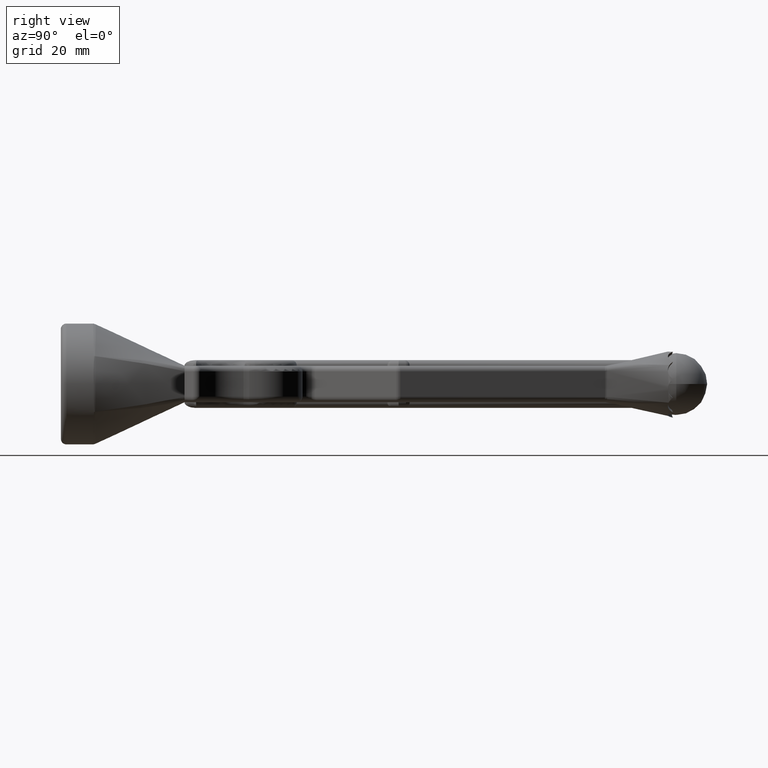
[diagram: clean part render]
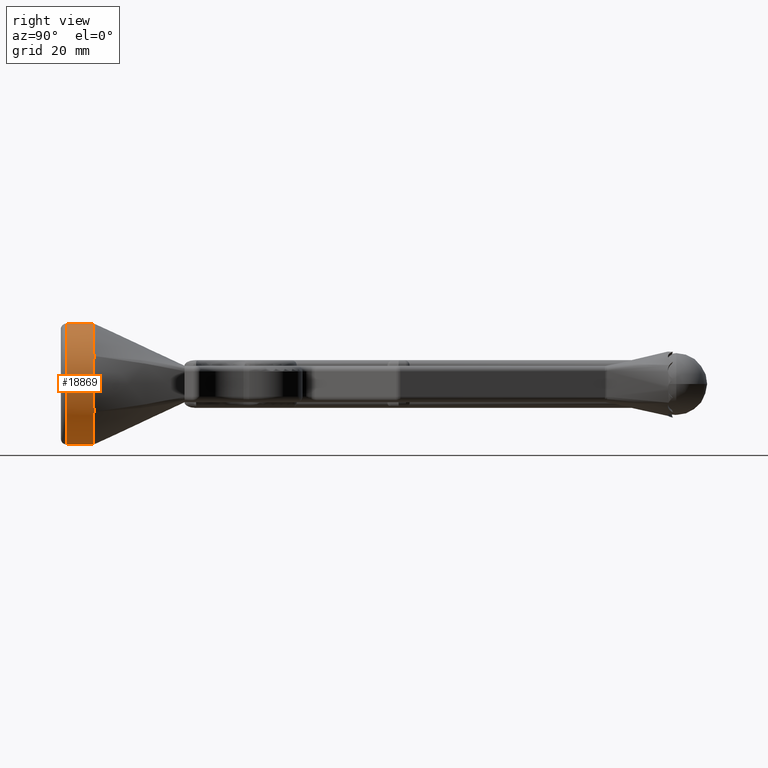
[diagram: same view with one face highlighted and labeled with its STEP entity id]
A machine part, right view. The second image highlights one B-rep face of the part: STEP entity #18869.
In plain terms, the highlighted cylindrical surface (partial cylindrical patch) has radius 10.75 mm, axis along (-0, -1, -0).
Its self-contained STEP definition (entity closure, byte-faithful):
#3 = CARTESIAN_POINT ( 'NONE',  ( 4.725174304590051800, 5.795162622435207700, 9.668112847951073600 ) ) ;
#74 = CARTESIAN_POINT ( 'NONE',  ( 1.956417839838611200, 5.778615271767035800, 10.58190273925002800 ) ) ;
#188 = CARTESIAN_POINT ( 'NONE',  ( 10.34239481519529700, 5.870035083264898600, -2.962874020644298900 ) ) ;
#486 = CARTESIAN_POINT ( 'NONE',  ( 9.537855356464522300, 5.885695716629819600, -4.959013327812917800 ) ) ;
#933 = FACE_OUTER_BOUND ( 'NONE', #17246, .T. ) ;
#1604 = CARTESIAN_POINT ( 'NONE',  ( 3.831619432770290600, 5.788960261848076000, 10.05576306263685800 ) ) ;
#1662 = ORIENTED_EDGE ( 'NONE', *, *, #10467, .T. ) ;
#1698 = EDGE_CURVE ( 'NONE', #9133, #2454, #12166, .T. ) ;
#1926 = CARTESIAN_POINT ( 'NONE',  ( 9.537855356464913100, 5.885695716629804500, 4.959013327812180600 ) ) ;
#1953 = DIRECTION ( 'NONE',  ( 0.0000000000000000000, 0.0000000000000000000, -1.000000000000000000 ) ) ;
#2454 = VERTEX_POINT ( 'NONE', #11570 ) ;
#3033 = CARTESIAN_POINT ( 'NONE',  ( 1.944594644622609400, 5.778578755150919100, -10.58384183915621100 ) ) ;
#3097 = CARTESIAN_POINT ( 'NONE',  ( 2.421019379256362100, 5.781199463207594000, -10.48523401817364600 ) ) ;
#3280 = CARTESIAN_POINT ( 'NONE',  ( 7.658495101500184700E-016, 5.777253727057037700, 10.75000000000000000 ) ) ;
#3301 = CARTESIAN_POINT ( 'NONE',  ( 7.513424690924352100, 5.832113446495268000, -7.703730188725741900 ) ) ;
#3398 = VERTEX_POINT ( 'NONE', #19685 ) ;
#3470 = CARTESIAN_POINT ( 'NONE',  ( 10.75049167244283400, 5.862065998264337300, 0.4197607774801860300 ) ) ;
#3853 = DIRECTION ( 'NONE',  ( 0.0000000000000000000, 0.0000000000000000000, 1.000000000000000000 ) ) ;
#4635 = CARTESIAN_POINT ( 'NONE',  ( 8.486248395338700200, 5.853295216865734400, -6.617050957597189000 ) ) ;
#4916 = CARTESIAN_POINT ( 'NONE',  ( 9.913312464579565400, 5.877333413304520500, -4.180326521974966300 ) ) ;
#5061 = CARTESIAN_POINT ( 'NONE',  ( 10.74899517169546400, 5.862020587486056500, -0.8767462786699983200 ) ) ;
#5125 = CARTESIAN_POINT ( 'NONE',  ( 10.72500334991806900, 5.861547834034491100, 0.8490222306473020900 ) ) ;
#6312 = CARTESIAN_POINT ( 'NONE',  ( 5.164410477957959600, 5.799669368201714200, 9.440903984621385800 ) ) ;
#6374 = CARTESIAN_POINT ( 'NONE',  ( 9.310684971031943000, 5.877060285134781700, 5.395938822832991200 ) ) ;
#6396 = CARTESIAN_POINT ( 'NONE',  ( 8.178332561731796300, 5.846304041732499200, -6.993846289174045200 ) ) ;
#6463 = CARTESIAN_POINT ( 'NONE',  ( 6.391429602897166400, 5.814697623438361200, -8.657643219176522500 ) ) ;
#6512 = CARTESIAN_POINT ( 'NONE',  ( 3.374087929672922500, 5.786962797386550500, 10.21834391823094100 ) ) ;
#6576 = CARTESIAN_POINT ( 'NONE',  ( 6.418576394773854300, 5.815247403890522200, 8.678801276165952300 ) ) ;
#6625 = CARTESIAN_POINT ( 'NONE',  ( 9.737444678016906600, 5.881761674096837900, 4.575096308568330300 ) ) ;
#7594 = CARTESIAN_POINT ( 'NONE',  ( 5.666999330898592400E-015, 5.777253727057037700, -10.75000000000000000 ) ) ;
#7750 = B_SPLINE_CURVE_WITH_KNOTS ( 'NONE', 3,
 ( #9697, #6374, #16049, #17636, #9559, #11149, #6576, #6312, #3, #1604, #6512, #19083, #74, #12685, #12755, #3280 ),
 .UNSPECIFIED., .F., .F.,
 ( 4, 2, 2, 2, 2, 2, 2, 4 ),
 ( 4.507345650460055400E-007, 0.001466143493673842500, 0.002931836252782638700, 0.005863221771000231600, 0.007328914530109025900, 0.008794607289217821000, 0.01026030004832661400, 0.01172599280743540800 ),
 .UNSPECIFIED. ) ;
#8118 = CARTESIAN_POINT ( 'NONE',  ( 1.316495309083404600E-015, 6.000000000000000000, 10.75000000000000000 ) ) ;
#8148 = DIRECTION ( 'NONE',  ( -0.0000000000000000000, -1.000000000000000000, -0.0000000000000000000 ) ) ;
#8617 = ORIENTED_EDGE ( 'NONE', *, *, #13134, .T. ) ;
#9133 = VERTEX_POINT ( 'NONE', #17379 ) ;
#9559 = CARTESIAN_POINT ( 'NONE',  ( 8.179886486364502200, 5.846334373851606300, 6.992351852599513000 ) ) ;
#9697 = CARTESIAN_POINT ( 'NONE',  ( 9.537855356464913100, 5.885695716629804500, 4.959013327812180600 ) ) ;
#9812 = ORIENTED_EDGE ( 'NONE', *, *, #18852, .T. ) ;
#10316 = DIRECTION ( 'NONE',  ( 0.0000000000000000000, 1.000000000000000000, 0.0000000000000000000 ) ) ;
#10467 = EDGE_CURVE ( 'NONE', #14057, #2454, #16684, .T. ) ;
#11149 = CARTESIAN_POINT ( 'NONE',  ( 7.172796657764938500, 5.824849381168526500, 8.067068708508554000 ) ) ;
#11357 = DIRECTION ( 'NONE',  ( -0.0000000000000000000, -1.000000000000000000, -0.0000000000000000000 ) ) ;
#11431 = DIRECTION ( 'NONE',  ( -0.0000000000000000000, -1.000000000000000000, -0.0000000000000000000 ) ) ;
#11570 = CARTESIAN_POINT ( 'NONE',  ( 0.0000000000000000000, 1.000000000000000000, -10.75000000000000000 ) ) ;
#11650 = CARTESIAN_POINT ( 'NONE',  ( 1.316495309083404600E-015, 1.000000000000000000, 10.75000000000000000 ) ) ;
#11757 = VERTEX_POINT ( 'NONE', #20526 ) ;
#11813 = CYLINDRICAL_SURFACE ( 'NONE', #19610, 10.75000000000000000 ) ;
#12166 = LINE ( 'NONE', #17740, #16849 ) ;
#12378 = CARTESIAN_POINT ( 'NONE',  ( 0.4932226790209139900, 5.777253727057042100, -10.75000000000000000 ) ) ;
#12685 = CARTESIAN_POINT ( 'NONE',  ( 0.9823130666299148000, 5.776615037339651900, 10.71630987729050900 ) ) ;
#12732 = EDGE_CURVE ( 'NONE', #9133, #15383, #17354, .T. ) ;
#12755 = CARTESIAN_POINT ( 'NONE',  ( 0.4925289183767052000, 5.777253727057040300, 10.75000000000000000 ) ) ;
#12771 = CARTESIAN_POINT ( 'NONE',  ( 9.052126554828680200, 5.868600881897321200, -5.819001635864350600 ) ) ;
#12939 = CARTESIAN_POINT ( 'NONE',  ( 9.537855356464522300, 5.885695716629819600, -4.959013327812917800 ) ) ;
#13009 = CARTESIAN_POINT ( 'NONE',  ( 10.54697107156480800, 5.865869404452009700, 2.123775221812829600 ) ) ;
#13075 = CARTESIAN_POINT ( 'NONE',  ( 9.913232154847190000, 5.877336635032770900, 4.180346772911340400 ) ) ;
#13134 = EDGE_CURVE ( 'NONE', #11757, #3398, #7750, .T. ) ;
#13159 = ORIENTED_EDGE ( 'NONE', *, *, #1698, .F. ) ;
#13243 = CARTESIAN_POINT ( 'NONE',  ( 0.0000000000000000000, 1.000000000000000000, 0.0000000000000000000 ) ) ;
#14057 = VERTEX_POINT ( 'NONE', #11650 ) ;
#14086 = CARTESIAN_POINT ( 'NONE',  ( 7.156430646636049900, 5.825666773329023900, -8.036831395471216100 ) ) ;
#14218 = CARTESIAN_POINT ( 'NONE',  ( 0.9806955887889110500, 5.776624126686249000, -10.71622100230759500 ) ) ;
#14262 = VECTOR ( 'NONE', #11357, 1000.000000000000000 ) ;
#14272 = CARTESIAN_POINT ( 'NONE',  ( 5.990477809582728200, 5.809922929719663300, -8.939430870490447500 ) ) ;
#14296 = B_SPLINE_CURVE_WITH_KNOTS ( 'NONE', 3,
 ( #12939, #14572, #4916, #19348, #188, #16099, #5061, #3470, #5125, #16177, #13009, #15961, #14498, #13075, #6625, #1926 ),
 .UNSPECIFIED., .F., .F.,
 ( 4, 2, 2, 2, 2, 2, 2, 4 ),
 ( 0.0000000000000000000, 0.001294680738535353600, 0.002589361477070707300, 0.005178722954141413600, 0.006473403692676765700, 0.007768084431212119600, 0.009062765169747473400, 0.01035744590828282700 ),
 .UNSPECIFIED. ) ;
#14345 = CARTESIAN_POINT ( 'NONE',  ( 9.537855356464522300, 5.885695716629819600, -4.959013327812917800 ) ) ;
#14498 = CARTESIAN_POINT ( 'NONE',  ( 10.21550567715958600, 5.871571162509089200, 3.375042911965229700 ) ) ;
#14572 = CARTESIAN_POINT ( 'NONE',  ( 9.737444090262336300, 5.881761685694069500, -4.575097439135479500 ) ) ;
#15074 = AXIS2_PLACEMENT_3D ( 'NONE', #13243, #10316, #3853 ) ;
#15226 = ORIENTED_EDGE ( 'NONE', *, *, #12732, .T. ) ;
#15383 = VERTEX_POINT ( 'NONE', #486 ) ;
#15821 = ORIENTED_EDGE ( 'NONE', *, *, #19249, .T. ) ;
#15961 = CARTESIAN_POINT ( 'NONE',  ( 10.34261022556856900, 5.870042740828215400, 2.963010917829289600 ) ) ;
#16049 = CARTESIAN_POINT ( 'NONE',  ( 9.055615306024773000, 5.868707477966615300, 5.813517901032230200 ) ) ;
#16099 = CARTESIAN_POINT ( 'NONE',  ( 10.64527643270770500, 5.863885728668500400, -1.722092208212999900 ) ) ;
#16177 = CARTESIAN_POINT ( 'NONE',  ( 10.62324301112267800, 5.863422328302419800, 1.700953712045176800 ) ) ;
#16684 = CIRCLE ( 'NONE', #15074, 10.75000000000000000 ) ;
#16849 = VECTOR ( 'NONE', #8148, 1000.000000000000000 ) ;
#16983 = LINE ( 'NONE', #8118, #14262 ) ;
#17246 = EDGE_LOOP ( 'NONE', ( #8617, #9812, #1662, #13159, #15226, #15821 ) ) ;
#17354 = B_SPLINE_CURVE_WITH_KNOTS ( 'NONE', 3,
 ( #7594, #12378, #14218, #3033, #3097, #17450, #19108, #20440, #18969, #14272, #6463, #14086, #3301, #6396, #4635, #12771, #17518, #14345 ),
 .UNSPECIFIED., .F., .F.,
 ( 4, 2, 2, 2, 2, 2, 2, 2, 4 ),
 ( 0.01172599280743480100, 0.01319375009496990100, 0.01466150738250500100, 0.01612926467004010400, 0.01759702195757520400, 0.01906477924511030400, 0.02053253653264540400, 0.02200029382018050400, 0.02346805110771560100 ),
 .UNSPECIFIED. ) ;
#17379 = CARTESIAN_POINT ( 'NONE',  ( 5.666999330898592400E-015, 5.777253727057037700, -10.75000000000000000 ) ) ;
#17450 = CARTESIAN_POINT ( 'NONE',  ( 3.362665251794386500, 5.786896124587918200, -10.22222821379836900 ) ) ;
#17518 = CARTESIAN_POINT ( 'NONE',  ( 9.310368029894755500, 5.877048248358827100, -5.396548407566650800 ) ) ;
#17636 = CARTESIAN_POINT ( 'NONE',  ( 8.490994453795840600, 5.853411529911477700, 6.610913109543984600 ) ) ;
#17740 = CARTESIAN_POINT ( 'NONE',  ( 0.0000000000000000000, 6.000000000000000000, -10.75000000000000000 ) ) ;
#18852 = EDGE_CURVE ( 'NONE', #3398, #14057, #16983, .T. ) ;
#18869 = ADVANCED_FACE ( 'NONE', ( #933 ), #11813, .T. ) ;
#18969 = CARTESIAN_POINT ( 'NONE',  ( 5.158401533780424800, 5.799601915126441300, -9.444053276621883000 ) ) ;
#19083 = CARTESIAN_POINT ( 'NONE',  ( 2.437627717294436700, 5.781302301183880700, 10.48126866845277000 ) ) ;
#19090 = CARTESIAN_POINT ( 'NONE',  ( 0.0000000000000000000, 6.000000000000000000, 0.0000000000000000000 ) ) ;
#19108 = CARTESIAN_POINT ( 'NONE',  ( 3.830129815463846600, 5.788950134597731900, -10.05640243899361000 ) ) ;
#19249 = EDGE_CURVE ( 'NONE', #15383, #11757, #14296, .T. ) ;
#19348 = CARTESIAN_POINT ( 'NONE',  ( 10.21661871736798900, 5.871551629307813200, -3.371883128852767500 ) ) ;
#19610 = AXIS2_PLACEMENT_3D ( 'NONE', #19090, #11431, #1953 ) ;
#19685 = CARTESIAN_POINT ( 'NONE',  ( 7.658495101500184700E-016, 5.777253727057037700, 10.75000000000000000 ) ) ;
#20440 = CARTESIAN_POINT ( 'NONE',  ( 4.726409735451969000, 5.795170985381886900, -9.667583743155608600 ) ) ;
#20526 = CARTESIAN_POINT ( 'NONE',  ( 9.537855356464913100, 5.885695716629804500, 4.959013327812180600 ) ) ;